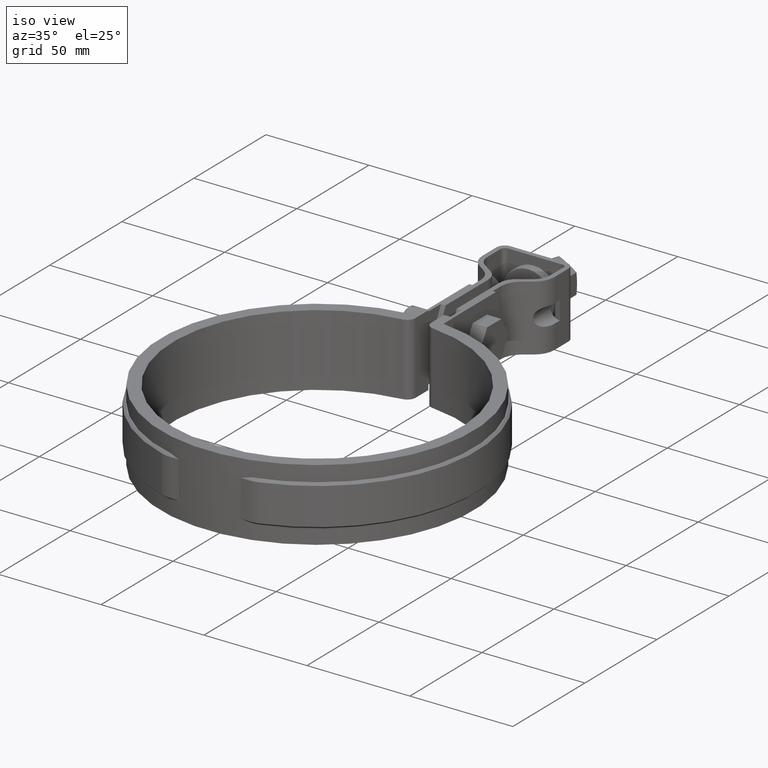
[diagram: clean part render]
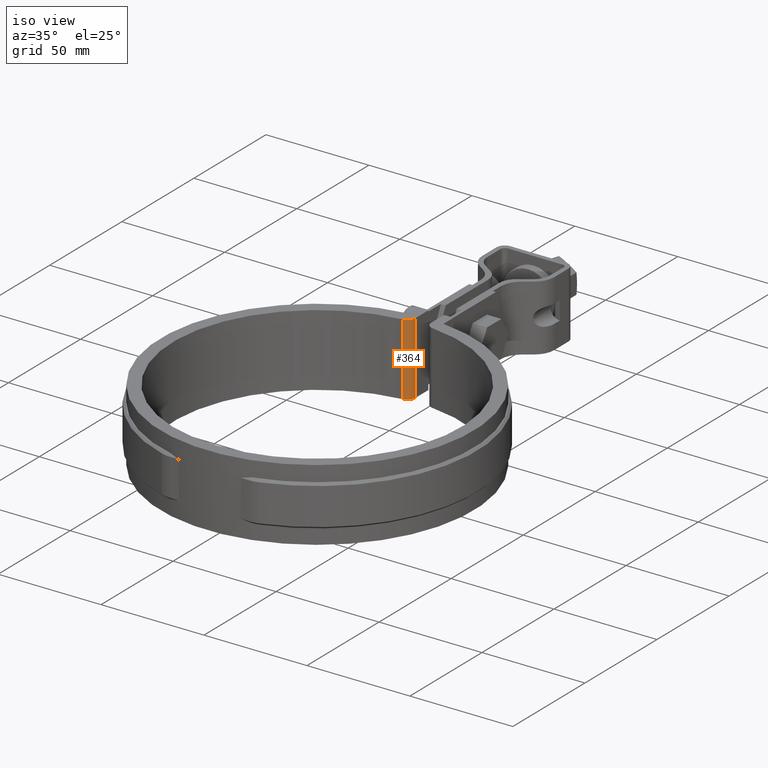
[diagram: same view with one face highlighted and labeled with its STEP entity id]
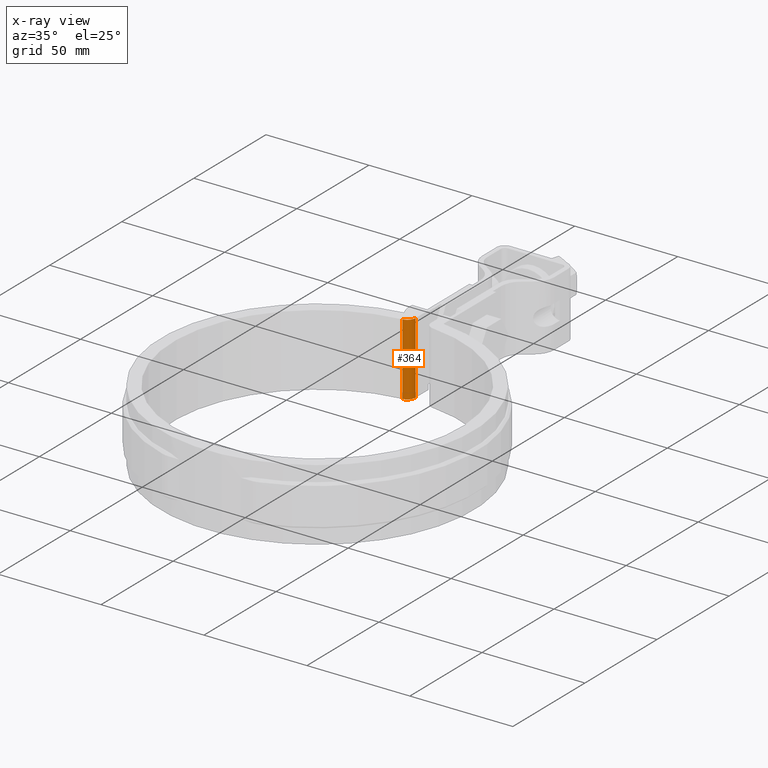
[diagram: x-ray of the same camera — body ghosted, the highlighted face saturated]
A machine part, iso view. The second image highlights one B-rep face of the part: STEP entity #364.
The next image is the same camera in x-ray: the body ghosted, the highlighted face saturated — about 0% of this face is hidden behind the body in this view.
In plain terms, the highlighted cylindrical surface (edge-blend (fillet) strip) has radius 4 mm, axis along (0, 0, 1).
Its self-contained STEP definition (entity closure, byte-faithful):
#364 = ADVANCED_FACE( '', ( #596 ), #597, .T. );
#596 = FACE_OUTER_BOUND( '', #1723, .T. );
#597 = CYLINDRICAL_SURFACE( '', #1724, 4.00000000000000 );
#1723 = EDGE_LOOP( '', ( #3576, #3577, #3578, #3579 ) );
#1724 = AXIS2_PLACEMENT_3D( '', #3580, #3581, #3582 );
#3576 = ORIENTED_EDGE( '', *, *, #5164, .F. );
#3577 = ORIENTED_EDGE( '', *, *, #5165, .F. );
#3578 = ORIENTED_EDGE( '', *, *, #5166, .T. );
#3579 = ORIENTED_EDGE( '', *, *, #5101, .T. );
#3580 = CARTESIAN_POINT( '', ( -7.80000000000000, 73.5877707231304, -33.5000000000000 ) );
#3581 = DIRECTION( '', ( 0.000000000000000, 0.000000000000000, 1.00000000000000 ) );
#3582 = DIRECTION( '', ( 0.000000000000000, 1.00000000000000, 0.000000000000000 ) );
#5101 = EDGE_CURVE( '', #5694, #5692, #5695, .T. );
#5164 = EDGE_CURVE( '', #5806, #5692, #5807, .T. );
#5165 = EDGE_CURVE( '', #5808, #5806, #5809, .T. );
#5166 = EDGE_CURVE( '', #5808, #5694, #5810, .T. );
#5692 = VERTEX_POINT( '', #7800 );
#5694 = VERTEX_POINT( '', #7803 );
#5695 = LINE( '', #7804, #7805 );
#5806 = VERTEX_POINT( '', #8469 );
#5807 = CIRCLE( '', #8470, 4.00000000000000 );
#5808 = VERTEX_POINT( '', #8471 );
#5809 = LINE( '', #8472, #8473 );
#5810 = CIRCLE( '', #8474, 4.00000000000000 );
#7800 = CARTESIAN_POINT( '', ( -3.80000000000000, 73.5877707231304, 1.50000000000000 ) );
#7803 = CARTESIAN_POINT( '', ( -3.80000000000000, 73.5877707231304, -33.5000000000000 ) );
#7804 = CARTESIAN_POINT( '', ( -3.80000000000000, 73.5877707231304, -33.5000000000000 ) );
#7805 = VECTOR( '', #9524, 1000.00000000000 );
#8469 = CARTESIAN_POINT( '', ( -7.37837837837835, 69.6100533867449, 1.50000000000000 ) );
#8470 = AXIS2_PLACEMENT_3D( '', #9598, #9599, #9600 );
#8471 = CARTESIAN_POINT( '', ( -7.37837837837835, 69.6100533867449, -33.5000000000000 ) );
#8472 = CARTESIAN_POINT( '', ( -7.37837837837833, 69.6100533867449, -33.5000000000000 ) );
#8473 = VECTOR( '', #9601, 1000.00000000000 );
#8474 = AXIS2_PLACEMENT_3D( '', #9602, #9603, #9604 );
#9524 = DIRECTION( '', ( 0.000000000000000, 0.000000000000000, 1.00000000000000 ) );
#9598 = CARTESIAN_POINT( '', ( -7.80000000000000, 73.5877707231304, 1.50000000000000 ) );
#9599 = DIRECTION( '', ( 0.000000000000000, 0.000000000000000, 1.00000000000000 ) );
#9600 = DIRECTION( '', ( 1.00000000000000, 0.000000000000000, 0.000000000000000 ) );
#9601 = DIRECTION( '', ( 0.000000000000000, 0.000000000000000, 1.00000000000000 ) );
#9602 = CARTESIAN_POINT( '', ( -7.80000000000000, 73.5877707231304, -33.5000000000000 ) );
#9603 = DIRECTION( '', ( 0.000000000000000, 0.000000000000000, 1.00000000000000 ) );
#9604 = DIRECTION( '', ( 1.00000000000000, 0.000000000000000, 0.000000000000000 ) );